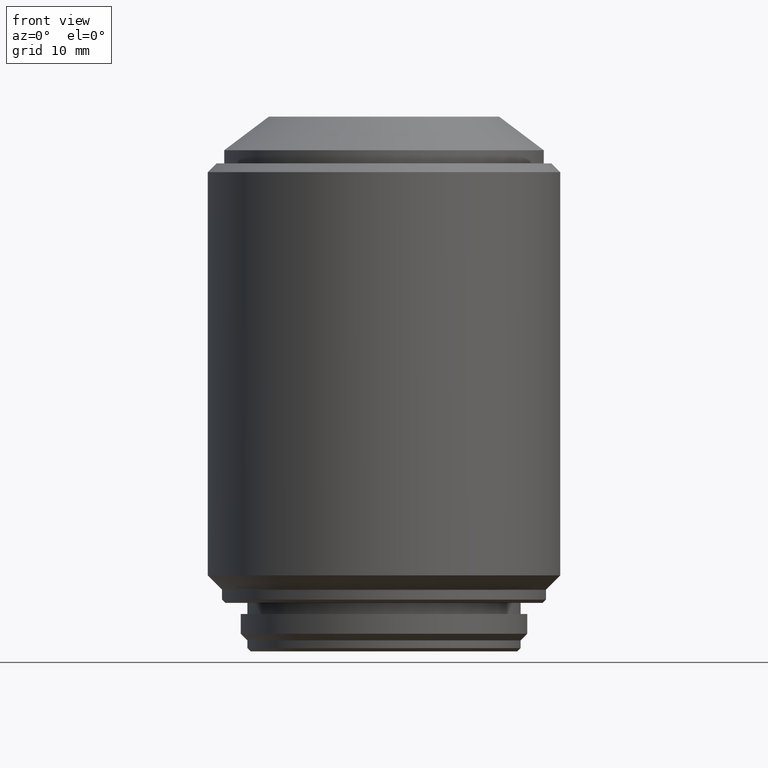
[diagram: clean part render]
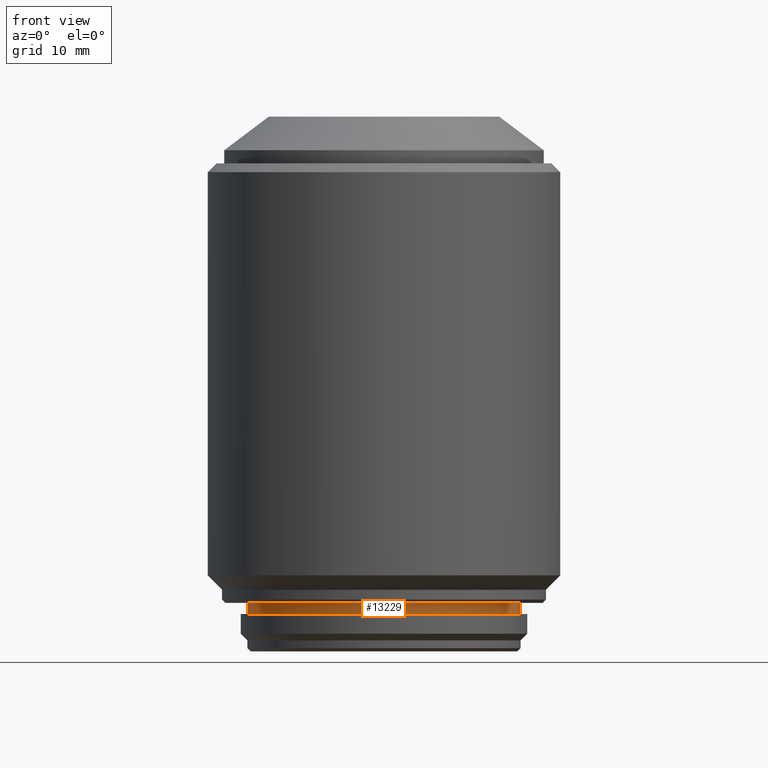
[diagram: same view with one face highlighted and labeled with its STEP entity id]
A machine part, front view. The second image highlights one B-rep face of the part: STEP entity #13229.
In plain terms, the highlighted cylindrical surface (partial cylindrical patch) has radius 12.4 mm, axis along (0, 0, 1).
Its self-contained STEP definition (entity closure, byte-faithful):
#154 = LINE ( 'NONE', #6759, #15003 ) ;
#333 = EDGE_CURVE ( 'NONE', #15063, #12630, #6932, .T. ) ;
#523 = EDGE_CURVE ( 'NONE', #25408, #22992, #154, .T. ) ;
#817 = CARTESIAN_POINT ( 'NONE',  ( 0.000000000000000000, 0.000000000000000000, 3.399999999999999911 ) ) ;
#2834 = DIRECTION ( 'NONE',  ( 0.000000000000000000, 0.000000000000000000, 1.000000000000000000 ) ) ;
#3132 = EDGE_LOOP ( 'NONE', ( #13798, #22619, #17257, #10623 ) ) ;
#3694 = DIRECTION ( 'NONE',  ( 0.000000000000000000, 0.000000000000000000, 1.000000000000000000 ) ) ;
#4445 = DIRECTION ( 'NONE',  ( 0.000000000000000000, 0.000000000000000000, -1.000000000000000000 ) ) ;
#5106 = EDGE_CURVE ( 'NONE', #25408, #15063, #11599, .T. ) ;
#5191 = AXIS2_PLACEMENT_3D ( 'NONE', #817, #2834, #9564 ) ;
#6759 = CARTESIAN_POINT ( 'NONE',  ( 12.40000000000000036, 0.000000000000000000, 3.399999999999999911 ) ) ;
#6932 = LINE ( 'NONE', #17690, #21429 ) ;
#8611 = DIRECTION ( 'NONE',  ( 0.000000000000000000, 0.000000000000000000, -1.000000000000000000 ) ) ;
#8724 = CARTESIAN_POINT ( 'NONE',  ( 12.40000000000000036, 0.000000000000000000, 4.400000000000000355 ) ) ;
#9068 = AXIS2_PLACEMENT_3D ( 'NONE', #11044, #8611, #23975 ) ;
#9564 = DIRECTION ( 'NONE',  ( 1.000000000000000000, 0.000000000000000000, 0.000000000000000000 ) ) ;
#10623 = ORIENTED_EDGE ( 'NONE', *, *, #14558, .T. ) ;
#11044 = CARTESIAN_POINT ( 'NONE',  ( 0.000000000000000000, 0.000000000000000000, 4.400000000000000355 ) ) ;
#11599 = CIRCLE ( 'NONE', #16176, 12.40000000000000036 ) ;
#12630 = VERTEX_POINT ( 'NONE', #21466 ) ;
#13229 = ADVANCED_FACE ( 'NONE', ( #20478 ), #13726, .T. ) ;
#13467 = DIRECTION ( 'NONE',  ( -1.000000000000000000, 0.000000000000000000, 0.000000000000000000 ) ) ;
#13726 = CYLINDRICAL_SURFACE ( 'NONE', #5191, 12.40000000000000036 ) ;
#13798 = ORIENTED_EDGE ( 'NONE', *, *, #333, .F. ) ;
#13811 = CARTESIAN_POINT ( 'NONE',  ( -12.40000000000000036, 1.518562030942717967E-15, 3.399999999999999911 ) ) ;
#14558 = EDGE_CURVE ( 'NONE', #22992, #12630, #20999, .T. ) ;
#15003 = VECTOR ( 'NONE', #23992, 1000.000000000000000 ) ;
#15063 = VERTEX_POINT ( 'NONE', #13811 ) ;
#15331 = CARTESIAN_POINT ( 'NONE',  ( 0.000000000000000000, 0.000000000000000000, 3.399999999999999911 ) ) ;
#16176 = AXIS2_PLACEMENT_3D ( 'NONE', #15331, #4445, #13467 ) ;
#17257 = ORIENTED_EDGE ( 'NONE', *, *, #523, .T. ) ;
#17690 = CARTESIAN_POINT ( 'NONE',  ( -12.40000000000000036, 1.518562030942717967E-15, 3.399999999999999911 ) ) ;
#20478 = FACE_OUTER_BOUND ( 'NONE', #3132, .T. ) ;
#20947 = CARTESIAN_POINT ( 'NONE',  ( 12.40000000000000036, 0.000000000000000000, 3.399999999999999911 ) ) ;
#20999 = CIRCLE ( 'NONE', #9068, 12.40000000000000036 ) ;
#21429 = VECTOR ( 'NONE', #3694, 1000.000000000000000 ) ;
#21466 = CARTESIAN_POINT ( 'NONE',  ( -12.40000000000000036, 1.518562030942717967E-15, 4.400000000000000355 ) ) ;
#22619 = ORIENTED_EDGE ( 'NONE', *, *, #5106, .F. ) ;
#22992 = VERTEX_POINT ( 'NONE', #8724 ) ;
#23975 = DIRECTION ( 'NONE',  ( -1.000000000000000000, 0.000000000000000000, 0.000000000000000000 ) ) ;
#23992 = DIRECTION ( 'NONE',  ( 0.000000000000000000, 0.000000000000000000, 1.000000000000000000 ) ) ;
#25408 = VERTEX_POINT ( 'NONE', #20947 ) ;